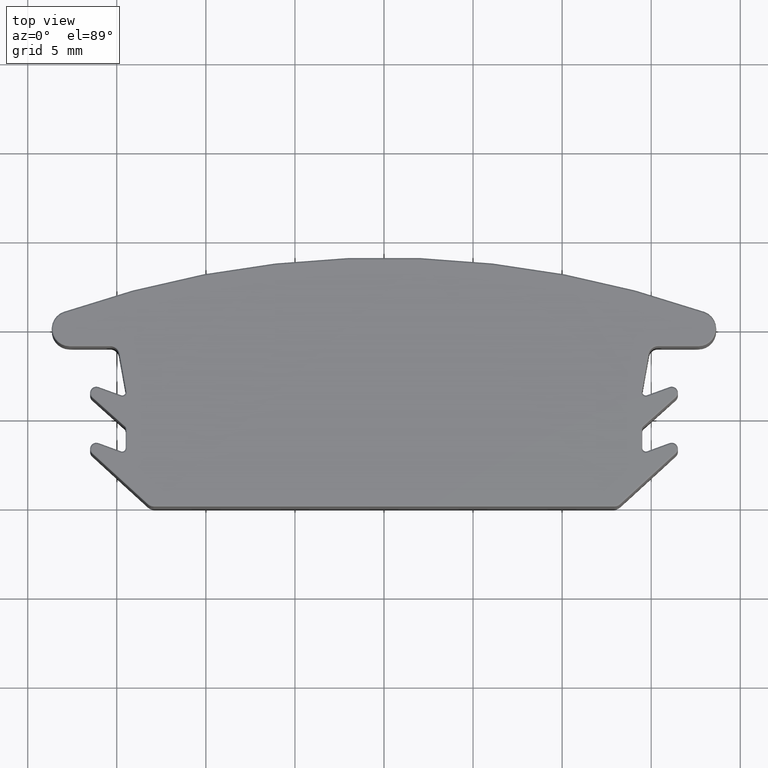
[diagram: clean part render]
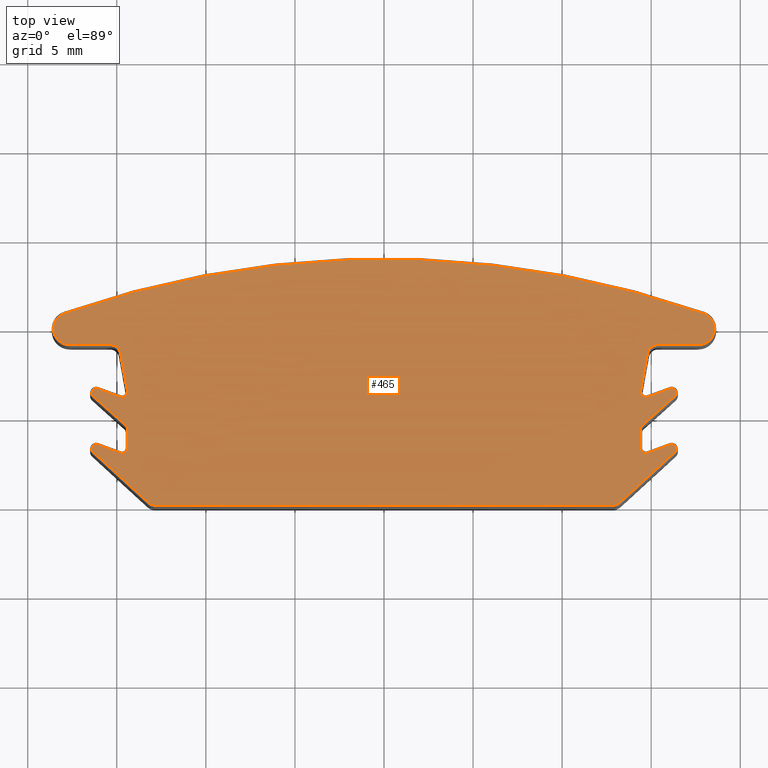
[diagram: same view with one face highlighted and labeled with its STEP entity id]
A machine part, top view. The second image highlights one B-rep face of the part: STEP entity #465.
In plain terms, the highlighted planar face has unit normal (0, 0, 1).
Its self-contained STEP definition (entity closure, byte-faithful):
#4 = VERTEX_POINT ( 'NONE', #1620 ) ;
#9 = DIRECTION ( 'NONE',  ( -0.0000000000000000000, -0.0000000000000000000, -1.000000000000000000 ) ) ;
#10 = AXIS2_PLACEMENT_3D ( 'NONE', #1597, #3017, #2308 ) ;
#14 = AXIS2_PLACEMENT_3D ( 'NONE', #2003, #1460, #765 ) ;
#25 = ORIENTED_EDGE ( 'NONE', *, *, #2714, .T. ) ;
#29 = EDGE_CURVE ( 'NONE', #3128, #1011, #2150, .T. ) ;
#33 = DIRECTION ( 'NONE',  ( 0.0000000000000000000, 0.0000000000000000000, 1.000000000000000000 ) ) ;
#49 = EDGE_CURVE ( 'NONE', #2517, #544, #2270, .T. ) ;
#55 = VECTOR ( 'NONE', #1132, 1000.000000000000100 ) ;
#63 = CARTESIAN_POINT ( 'NONE',  ( -14.78003177189943800, 8.606178591350721200, 5.000000000000000000 ) ) ;
#67 = AXIS2_PLACEMENT_3D ( 'NONE', #2975, #9, #267 ) ;
#92 = CARTESIAN_POINT ( 'NONE',  ( 16.15000000000000200, 6.391038712572399300, 5.000000000000000000 ) ) ;
#110 = DIRECTION ( 'NONE',  ( 1.000000000000000000, 0.0000000000000000000, 0.0000000000000000000 ) ) ;
#114 = CIRCLE ( 'NONE', #509, 0.2500000000000002200 ) ;
#119 = DIRECTION ( 'NONE',  ( -0.0000000000000000000, -0.0000000000000000000, -1.000000000000000000 ) ) ;
#125 = VERTEX_POINT ( 'NONE', #725 ) ;
#132 = CARTESIAN_POINT ( 'NONE',  ( 14.39999999999993100, -40.42041666666671100, 5.000000000000000000 ) ) ;
#135 = CARTESIAN_POINT ( 'NONE',  ( -17.94735821978175800, 10.84945752638269500, 5.000000000000000000 ) ) ;
#150 = DIRECTION ( 'NONE',  ( 1.000000000000000000, 0.0000000000000000000, 0.0000000000000000000 ) ) ;
#154 = EDGE_CURVE ( 'NONE', #2192, #957, #1378, .T. ) ;
#162 = DIRECTION ( 'NONE',  ( 1.000000000000000000, 0.0000000000000000000, 0.0000000000000000000 ) ) ;
#184 = CARTESIAN_POINT ( 'NONE',  ( -17.64999999999999900, 9.999999999999998200, 5.000000000000000000 ) ) ;
#198 = VERTEX_POINT ( 'NONE', #1989 ) ;
#199 = ORIENTED_EDGE ( 'NONE', *, *, #154, .T. ) ;
#207 = CARTESIAN_POINT ( 'NONE',  ( -12.92418032266193600, 0.09999999999999889500, 5.000000000000000000 ) ) ;
#231 = CARTESIAN_POINT ( 'NONE',  ( 12.92418032266193600, 0.1000000000000028200, 5.000000000000000000 ) ) ;
#248 = EDGE_CURVE ( 'NONE', #1172, #2517, #2890, .T. ) ;
#262 = ORIENTED_EDGE ( 'NONE', *, *, #2360, .T. ) ;
#267 = DIRECTION ( 'NONE',  ( 1.000000000000000000, 0.0000000000000000000, 0.0000000000000000000 ) ) ;
#278 = VECTOR ( 'NONE', #1469, 1000.000000000000000 ) ;
#280 = VERTEX_POINT ( 'NONE', #2988 ) ;
#288 = DIRECTION ( 'NONE',  ( 1.000000000000000000, 1.445602896647331200E-015, 0.0000000000000000000 ) ) ;
#289 = CIRCLE ( 'NONE', #784, 0.4000000000000010200 ) ;
#303 = VERTEX_POINT ( 'NONE', #2799 ) ;
#309 = VERTEX_POINT ( 'NONE', #2548 ) ;
#317 = CARTESIAN_POINT ( 'NONE',  ( 13.22640628220673700, -4.015959036050905000, 5.000000000000000000 ) ) ;
#339 = VERTEX_POINT ( 'NONE', #1082 ) ;
#358 = LINE ( 'NONE', #1895, #2198 ) ;
#381 = VERTEX_POINT ( 'NONE', #135 ) ;
#382 = DIRECTION ( 'NONE',  ( -0.9389742350207133100, 0.3439874793757271600, 0.0000000000000000000 ) ) ;
#418 = ORIENTED_EDGE ( 'NONE', *, *, #3093, .T. ) ;
#419 = EDGE_CURVE ( 'NONE', #381, #2366, #1339, .T. ) ;
#441 = CARTESIAN_POINT ( 'NONE',  ( -14.40000000000000200, 3.299999999999999800, 5.000000000000000000 ) ) ;
#465 = ADVANCED_FACE ( 'NONE', ( #613 ), #1645, .T. ) ;
#473 = EDGE_LOOP ( 'NONE', ( #604, #1024, #3037, #1604, #2114, #1397, #2130, #1614, #1981, #1228, #1982, #1774, #199, #418, #2029, #753, #1768, #1051, #2207, #262, #3149, #1468, #580, #555, #2918, #574, #1504, #1958, #986, #1816, #506, #1302, #2536, #2507, #25, #1045 ) ) ;
#505 = LINE ( 'NONE', #2692, #1667 ) ;
#506 = ORIENTED_EDGE ( 'NONE', *, *, #1035, .T. ) ;
#508 = AXIS2_PLACEMENT_3D ( 'NONE', #2738, #2036, #579 ) ;
#509 = AXIS2_PLACEMENT_3D ( 'NONE', #1437, #1697, #1425 ) ;
#540 = CARTESIAN_POINT ( 'NONE',  ( 16.31867223736158600, 3.060927533538993800, 5.000000000000000000 ) ) ;
#544 = VERTEX_POINT ( 'NONE', #2202 ) ;
#548 = CARTESIAN_POINT ( 'NONE',  ( -14.69684345351877600, 6.448255560609276800, 5.000000000000000000 ) ) ;
#555 = ORIENTED_EDGE ( 'NONE', *, *, #2565, .T. ) ;
#567 = VERTEX_POINT ( 'NONE', #231 ) ;
#574 = ORIENTED_EDGE ( 'NONE', *, *, #2683, .T. ) ;
#579 = DIRECTION ( 'NONE',  ( 1.000000000000000000, 2.891205793294679000E-015, 0.0000000000000000000 ) ) ;
#580 = ORIENTED_EDGE ( 'NONE', *, *, #3043, .T. ) ;
#604 = ORIENTED_EDGE ( 'NONE', *, *, #49, .T. ) ;
#608 = VERTEX_POINT ( 'NONE', #2647 ) ;
#611 = CARTESIAN_POINT ( 'NONE',  ( -12.92418032266193600, 0.5000000000000004400, 5.000000000000000000 ) ) ;
#613 = FACE_OUTER_BOUND ( 'NONE', #473, .T. ) ;
#622 = CARTESIAN_POINT ( 'NONE',  ( 14.70000000000000300, 3.299999999999999800, 5.000000000000000000 ) ) ;
#658 = CARTESIAN_POINT ( 'NONE',  ( 17.94735821978175800, 10.84945752638269500, 5.000000000000000000 ) ) ;
#688 = EDGE_CURVE ( 'NONE', #2859, #2107, #2572, .T. ) ;
#725 = CARTESIAN_POINT ( 'NONE',  ( 14.40000000000000400, 4.358516086231699800, 5.000000000000000000 ) ) ;
#738 = AXIS2_PLACEMENT_3D ( 'NONE', #2746, #1008, #2728 ) ;
#739 = DIRECTION ( 'NONE',  ( 0.7458248930639943500, -0.6661420485797914200, 0.0000000000000000000 ) ) ;
#753 = ORIENTED_EDGE ( 'NONE', *, *, #1638, .T. ) ;
#765 = DIRECTION ( 'NONE',  ( 1.000000000000000000, -2.891205793294645900E-015, 0.0000000000000000000 ) ) ;
#768 = CARTESIAN_POINT ( 'NONE',  ( 1.231143763746116700E-016, 0.1000000000000028600, 5.000000000000000000 ) ) ;
#772 = CIRCLE ( 'NONE', #1832, 54.32041666666667400 ) ;
#784 = AXIS2_PLACEMENT_3D ( 'NONE', #1595, #1866, #162 ) ;
#796 = DIRECTION ( 'NONE',  ( 0.7381021755116327100, 0.6746889494463317300, -0.0000000000000000000 ) ) ;
#803 = EDGE_CURVE ( 'NONE', #339, #864, #1695, .T. ) ;
#840 = EDGE_CURVE ( 'NONE', #3105, #2859, #2740, .T. ) ;
#850 = DIRECTION ( 'NONE',  ( 0.0000000000000000000, 0.0000000000000000000, 1.000000000000000000 ) ) ;
#864 = VERTEX_POINT ( 'NONE', #3058 ) ;
#874 = DIRECTION ( 'NONE',  ( 0.0000000000000000000, 0.0000000000000000000, 1.000000000000000000 ) ) ;
#950 = CARTESIAN_POINT ( 'NONE',  ( -15.37056213245575800, 8.499999999999998200, 5.000000000000000000 ) ) ;
#957 = VERTEX_POINT ( 'NONE', #2403 ) ;
#977 = VERTEX_POINT ( 'NONE', #1886 ) ;
#979 = LINE ( 'NONE', #768, #2846 ) ;
#986 = ORIENTED_EDGE ( 'NONE', *, *, #3000, .T. ) ;
#1008 = DIRECTION ( 'NONE',  ( -0.0000000000000000000, -0.0000000000000000000, -1.000000000000000000 ) ) ;
#1011 = VERTEX_POINT ( 'NONE', #1923 ) ;
#1016 = CARTESIAN_POINT ( 'NONE',  ( -16.15000000000000200, 6.391038712572399300, 5.000000000000000000 ) ) ;
#1024 = ORIENTED_EDGE ( 'NONE', *, *, #1340, .T. ) ;
#1035 = EDGE_CURVE ( 'NONE', #3110, #309, #114, .T. ) ;
#1039 = EDGE_CURVE ( 'NONE', #2182, #4, #505, .T. ) ;
#1045 = ORIENTED_EDGE ( 'NONE', *, *, #248, .T. ) ;
#1051 = ORIENTED_EDGE ( 'NONE', *, *, #2511, .T. ) ;
#1078 = CARTESIAN_POINT ( 'NONE',  ( 15.37056213245575800, 9.099999999999999600, 5.000000000000000000 ) ) ;
#1082 = CARTESIAN_POINT ( 'NONE',  ( 16.06463024189465100, 6.626011060734973600, 5.000000000000000000 ) ) ;
#1086 = DIRECTION ( 'NONE',  ( 1.000000000000000000, 0.0000000000000000000, 0.0000000000000000000 ) ) ;
#1094 = CIRCLE ( 'NONE', #1999, 0.2500000000000002200 ) ;
#1114 = AXIS2_PLACEMENT_3D ( 'NONE', #1985, #33, #2933 ) ;
#1132 = DIRECTION ( 'NONE',  ( 0.7458248930639943500, 0.6661420485797914200, -0.0000000000000000000 ) ) ;
#1154 = CARTESIAN_POINT ( 'NONE',  ( -12.27888379074712500, -6.903046978534430200, 5.000000000000000000 ) ) ;
#1172 = VERTEX_POINT ( 'NONE', #1976 ) ;
#1184 = AXIS2_PLACEMENT_3D ( 'NONE', #548, #2732, #2713 ) ;
#1193 = EDGE_CURVE ( 'NONE', #2107, #303, #1466, .T. ) ;
#1194 = EDGE_CURVE ( 'NONE', #1929, #567, #979, .T. ) ;
#1199 = EDGE_CURVE ( 'NONE', #2780, #2192, #2995, .T. ) ;
#1209 = DIRECTION ( 'NONE',  ( 0.0000000000000000000, 0.0000000000000000000, 1.000000000000000000 ) ) ;
#1228 = ORIENTED_EDGE ( 'NONE', *, *, #1193, .T. ) ;
#1241 = EDGE_CURVE ( 'NONE', #2366, #280, #1701, .T. ) ;
#1256 = CARTESIAN_POINT ( 'NONE',  ( -14.22490359105840200, -24.85853100717935500, 5.000000000000000000 ) ) ;
#1296 = EDGE_CURVE ( 'NONE', #309, #339, #1094, .T. ) ;
#1302 = ORIENTED_EDGE ( 'NONE', *, *, #1296, .T. ) ;
#1304 = CARTESIAN_POINT ( 'NONE',  ( 14.50015738542606400, 4.582263554150897800, 5.000000000000000000 ) ) ;
#1306 = EDGE_CURVE ( 'NONE', #2233, #2092, #2808, .T. ) ;
#1309 = CARTESIAN_POINT ( 'NONE',  ( -14.70000000000000300, 3.299999999999999800, 5.000000000000000000 ) ) ;
#1318 = VECTOR ( 'NONE', #382, 1000.000000000000000 ) ;
#1339 = CIRCLE ( 'NONE', #3082, 0.8999999999999980200 ) ;
#1340 = EDGE_CURVE ( 'NONE', #544, #3103, #2885, .T. ) ;
#1345 = AXIS2_PLACEMENT_3D ( 'NONE', #1016, #1514, #2744 ) ;
#1350 = DIRECTION ( 'NONE',  ( 1.000000000000000000, 0.0000000000000000000, 0.0000000000000000000 ) ) ;
#1353 = CIRCLE ( 'NONE', #3033, 0.2500000000000002200 ) ;
#1360 = EDGE_CURVE ( 'NONE', #2297, #3110, #2500, .T. ) ;
#1363 = CARTESIAN_POINT ( 'NONE',  ( -14.39684345351877100, 6.448255560609276800, 4.999999999999999100 ) ) ;
#1378 = LINE ( 'NONE', #1447, #2934 ) ;
#1397 = ORIENTED_EDGE ( 'NONE', *, *, #1241, .T. ) ;
#1398 = EDGE_CURVE ( 'NONE', #567, #198, #289, .T. ) ;
#1425 = DIRECTION ( 'NONE',  ( 1.000000000000000000, 0.0000000000000000000, 0.0000000000000000000 ) ) ;
#1435 = VECTOR ( 'NONE', #2331, 1000.000000000000100 ) ;
#1437 = CARTESIAN_POINT ( 'NONE',  ( 16.15000000000000200, 6.391038712572399300, 5.000000000000000000 ) ) ;
#1447 = CARTESIAN_POINT ( 'NONE',  ( 15.92409544032642700, -22.59150644512600100, 5.000000000000000000 ) ) ;
#1453 = EDGE_CURVE ( 'NONE', #2884, #977, #2394, .T. ) ;
#1460 = DIRECTION ( 'NONE',  ( -0.0000000000000000000, -0.0000000000000000000, -1.000000000000000000 ) ) ;
#1466 = CIRCLE ( 'NONE', #1184, 0.3000000000000033800 ) ;
#1468 = ORIENTED_EDGE ( 'NONE', *, *, #1398, .T. ) ;
#1469 = DIRECTION ( 'NONE',  ( 1.000000000000000000, -1.522062523112960000E-015, -0.0000000000000000000 ) ) ;
#1494 = DIRECTION ( 'NONE',  ( -0.0000000000000000000, -0.0000000000000000000, -1.000000000000000000 ) ) ;
#1504 = ORIENTED_EDGE ( 'NONE', *, *, #29, .T. ) ;
#1514 = DIRECTION ( 'NONE',  ( 0.0000000000000000000, 0.0000000000000000000, 1.000000000000000000 ) ) ;
#1516 = VECTOR ( 'NONE', #2761, 1000.000000000000100 ) ;
#1572 = DIRECTION ( 'NONE',  ( 0.0000000000000000000, 0.0000000000000000000, 1.000000000000000000 ) ) ;
#1595 = CARTESIAN_POINT ( 'NONE',  ( 12.92418032266193600, 0.5000000000000004400, 5.000000000000000000 ) ) ;
#1597 = CARTESIAN_POINT ( 'NONE',  ( -16.15000000000000200, 3.245453077416903500, 5.000000000000000000 ) ) ;
#1604 = ORIENTED_EDGE ( 'NONE', *, *, #2677, .T. ) ;
#1614 = ORIENTED_EDGE ( 'NONE', *, *, #840, .T. ) ;
#1620 = CARTESIAN_POINT ( 'NONE',  ( -13.19405590244046800, 0.2047591297953473600, 5.000000000000000000 ) ) ;
#1638 = EDGE_CURVE ( 'NONE', #2247, #2884, #2730, .T. ) ;
#1645 = PLANE ( 'NONE',  #2640 ) ;
#1657 = CARTESIAN_POINT ( 'NONE',  ( -16.06463024189465100, 6.626011060734970900, 5.000000000000000000 ) ) ;
#1667 = VECTOR ( 'NONE', #2665, 1000.000000000000100 ) ;
#1680 = AXIS2_PLACEMENT_3D ( 'NONE', #622, #1494, #288 ) ;
#1695 = LINE ( 'NONE', #2508, #1516 ) ;
#1697 = DIRECTION ( 'NONE',  ( 0.0000000000000000000, 0.0000000000000000000, 1.000000000000000000 ) ) ;
#1699 = VECTOR ( 'NONE', #2343, 1000.000000000000000 ) ;
#1701 = LINE ( 'NONE', #2273, #2206 ) ;
#1717 = CARTESIAN_POINT ( 'NONE',  ( -14.40000000000000200, 4.358516086231699800, 5.000000000000000000 ) ) ;
#1737 = EDGE_CURVE ( 'NONE', #280, #3105, #1770, .T. ) ;
#1754 = CARTESIAN_POINT ( 'NONE',  ( 16.31653551214494900, 6.204582489306398300, 5.000000000000000000 ) ) ;
#1768 = ORIENTED_EDGE ( 'NONE', *, *, #1453, .T. ) ;
#1770 = CIRCLE ( 'NONE', #2831, 0.6000000000000015300 ) ;
#1774 = ORIENTED_EDGE ( 'NONE', *, *, #1199, .T. ) ;
#1804 = DIRECTION ( 'NONE',  ( 1.000000000000000000, -2.891205793294645900E-015, 0.0000000000000000000 ) ) ;
#1809 = DIRECTION ( 'NONE',  ( 0.0000000000000000000, 0.0000000000000000000, 1.000000000000000000 ) ) ;
#1816 = ORIENTED_EDGE ( 'NONE', *, *, #1360, .T. ) ;
#1818 = CARTESIAN_POINT ( 'NONE',  ( 14.69684345351877600, 6.448255560609276800, 5.000000000000000000 ) ) ;
#1832 = AXIS2_PLACEMENT_3D ( 'NONE', #2645, #1871, #3113 ) ;
#1844 = EDGE_CURVE ( 'NONE', #1011, #125, #2843, .T. ) ;
#1851 = CIRCLE ( 'NONE', #10, 0.2500000000000002200 ) ;
#1854 = AXIS2_PLACEMENT_3D ( 'NONE', #1818, #119, #1804 ) ;
#1866 = DIRECTION ( 'NONE',  ( 0.0000000000000000000, 0.0000000000000000000, 1.000000000000000000 ) ) ;
#1871 = DIRECTION ( 'NONE',  ( 0.0000000000000000000, 0.0000000000000000000, 1.000000000000000000 ) ) ;
#1886 = CARTESIAN_POINT ( 'NONE',  ( -16.06400313015607000, 3.480196636172083300, 5.000000000000000000 ) ) ;
#1889 = VECTOR ( 'NONE', #796, 1000.000000000000100 ) ;
#1895 = CARTESIAN_POINT ( 'NONE',  ( 5.778147111199869500, -41.45933957709328900, 5.000000000000000000 ) ) ;
#1923 = CARTESIAN_POINT ( 'NONE',  ( 14.40000000000000200, 3.299999999999999800, 5.000000000000000000 ) ) ;
#1929 = VERTEX_POINT ( 'NONE', #207 ) ;
#1932 = LINE ( 'NONE', #1154, #2650 ) ;
#1945 = CARTESIAN_POINT ( 'NONE',  ( -14.39999999999993100, -40.42041666666671100, 5.000000000000000000 ) ) ;
#1958 = ORIENTED_EDGE ( 'NONE', *, *, #1844, .T. ) ;
#1968 = DIRECTION ( 'NONE',  ( 1.638825803916117600E-015, -1.000000000000000000, 0.0000000000000000000 ) ) ;
#1976 = CARTESIAN_POINT ( 'NONE',  ( 14.78003177189943800, 8.606178591350721200, 5.000000000000000000 ) ) ;
#1981 = ORIENTED_EDGE ( 'NONE', *, *, #688, .T. ) ;
#1982 = ORIENTED_EDGE ( 'NONE', *, *, #2444, .T. ) ;
#1985 = CARTESIAN_POINT ( 'NONE',  ( 17.64999999999999900, 9.999999999999998200, 5.000000000000000000 ) ) ;
#1989 = CARTESIAN_POINT ( 'NONE',  ( 13.19405590244047000, 0.2047591297953455800, 5.000000000000000000 ) ) ;
#1999 = AXIS2_PLACEMENT_3D ( 'NONE', #92, #1809, #2522 ) ;
#2003 = CARTESIAN_POINT ( 'NONE',  ( -14.69684345351877600, 6.448255560609276800, 5.000000000000000000 ) ) ;
#2015 = EDGE_CURVE ( 'NONE', #864, #608, #2915, .T. ) ;
#2016 = DIRECTION ( 'NONE',  ( -0.9398893926502898100, 0.3414790324214202500, 0.0000000000000000000 ) ) ;
#2029 = ORIENTED_EDGE ( 'NONE', *, *, #2837, .T. ) ;
#2033 = CARTESIAN_POINT ( 'NONE',  ( 16.15000000000000200, 3.245453077416903500, 5.000000000000000000 ) ) ;
#2036 = DIRECTION ( 'NONE',  ( -0.0000000000000000000, -0.0000000000000000000, -1.000000000000000000 ) ) ;
#2046 = DIRECTION ( 'NONE',  ( -0.0000000000000000000, -0.0000000000000000000, -1.000000000000000000 ) ) ;
#2083 = CARTESIAN_POINT ( 'NONE',  ( -15.92409544032642700, -22.59150644512600100, 5.000000000000000000 ) ) ;
#2092 = VERTEX_POINT ( 'NONE', #3030 ) ;
#2107 = VERTEX_POINT ( 'NONE', #1363 ) ;
#2113 = DIRECTION ( 'NONE',  ( -0.9389742350207133100, -0.3439874793757271600, 0.0000000000000000000 ) ) ;
#2114 = ORIENTED_EDGE ( 'NONE', *, *, #419, .T. ) ;
#2130 = ORIENTED_EDGE ( 'NONE', *, *, #1737, .T. ) ;
#2150 = CIRCLE ( 'NONE', #1680, 0.3000000000000016500 ) ;
#2157 = CARTESIAN_POINT ( 'NONE',  ( 16.40000000000000200, 3.245453077416903500, 5.000000000000000000 ) ) ;
#2182 = VERTEX_POINT ( 'NONE', #2621 ) ;
#2192 = VERTEX_POINT ( 'NONE', #2862 ) ;
#2198 = VECTOR ( 'NONE', #2363, 1000.000000000000100 ) ;
#2202 = CARTESIAN_POINT ( 'NONE',  ( 17.64999999999999900, 9.099999999999997900, 5.000000000000000000 ) ) ;
#2206 = VECTOR ( 'NONE', #2514, 1000.000000000000000 ) ;
#2207 = ORIENTED_EDGE ( 'NONE', *, *, #1039, .T. ) ;
#2233 = VERTEX_POINT ( 'NONE', #2157 ) ;
#2234 = LINE ( 'NONE', #1256, #1889 ) ;
#2236 = DIRECTION ( 'NONE',  ( 1.000000000000000000, -2.891205793294671100E-015, 0.0000000000000000000 ) ) ;
#2247 = VERTEX_POINT ( 'NONE', #441 ) ;
#2257 = CARTESIAN_POINT ( 'NONE',  ( 14.80319624381272100, 3.018307729493785500, 5.000000000000000000 ) ) ;
#2270 = LINE ( 'NONE', #2712, #278 ) ;
#2271 = AXIS2_PLACEMENT_3D ( 'NONE', #611, #850, #1350 ) ;
#2273 = CARTESIAN_POINT ( 'NONE',  ( -7.537317033727180900E-014, 9.100000000000024500, 5.000000000000000000 ) ) ;
#2278 = LINE ( 'NONE', #317, #2424 ) ;
#2297 = VERTEX_POINT ( 'NONE', #1304 ) ;
#2304 = DIRECTION ( 'NONE',  ( 0.0000000000000000000, 0.0000000000000000000, 1.000000000000000000 ) ) ;
#2308 = DIRECTION ( 'NONE',  ( 1.000000000000000000, 0.0000000000000000000, 0.0000000000000000000 ) ) ;
#2312 = CIRCLE ( 'NONE', #67, 0.2999999999999999300 ) ;
#2331 = DIRECTION ( 'NONE',  ( 0.1769643189178684300, -0.9842172675938656300, 0.0000000000000000000 ) ) ;
#2340 = CARTESIAN_POINT ( 'NONE',  ( -5.778147111199869500, -41.45933957709328900, 5.000000000000000000 ) ) ;
#2343 = DIRECTION ( 'NONE',  ( 1.638825803916117600E-015, 1.000000000000000000, -0.0000000000000000000 ) ) ;
#2360 = EDGE_CURVE ( 'NONE', #4, #1929, #3022, .T. ) ;
#2363 = DIRECTION ( 'NONE',  ( 0.1769643189178684300, 0.9842172675938656300, -0.0000000000000000000 ) ) ;
#2366 = VERTEX_POINT ( 'NONE', #2916 ) ;
#2382 = VERTEX_POINT ( 'NONE', #1717 ) ;
#2385 = CIRCLE ( 'NONE', #1114, 0.8999999999999980200 ) ;
#2394 = LINE ( 'NONE', #3049, #1318 ) ;
#2403 = CARTESIAN_POINT ( 'NONE',  ( -14.50015738542606400, 4.582263554150897800, 5.000000000000000000 ) ) ;
#2424 = VECTOR ( 'NONE', #2016, 1000.000000000000100 ) ;
#2443 = DIRECTION ( 'NONE',  ( -0.0000000000000000000, -0.0000000000000000000, -1.000000000000000000 ) ) ;
#2444 = EDGE_CURVE ( 'NONE', #303, #2780, #2278, .T. ) ;
#2451 = CARTESIAN_POINT ( 'NONE',  ( -14.40157827324061800, 6.501344856284637400, 5.000000000000000000 ) ) ;
#2485 = AXIS2_PLACEMENT_3D ( 'NONE', #2033, #2304, #2772 ) ;
#2486 = VERTEX_POINT ( 'NONE', #658 ) ;
#2487 = DIRECTION ( 'NONE',  ( 1.000000000000000000, -3.038329476900202600E-018, 0.0000000000000000000 ) ) ;
#2500 = LINE ( 'NONE', #2083, #55 ) ;
#2507 = ORIENTED_EDGE ( 'NONE', *, *, #2015, .T. ) ;
#2508 = CARTESIAN_POINT ( 'NONE',  ( -13.22640628220673700, -4.015959036050905000, 5.000000000000000000 ) ) ;
#2509 = CARTESIAN_POINT ( 'NONE',  ( 18.54999999999999700, 9.999999999999998200, 5.000000000000000000 ) ) ;
#2511 = EDGE_CURVE ( 'NONE', #977, #2182, #1851, .T. ) ;
#2514 = DIRECTION ( 'NONE',  ( 1.000000000000000000, 1.522062523112960000E-015, -0.0000000000000000000 ) ) ;
#2517 = VERTEX_POINT ( 'NONE', #1078 ) ;
#2522 = DIRECTION ( 'NONE',  ( 1.000000000000000000, 0.0000000000000000000, 0.0000000000000000000 ) ) ;
#2536 = ORIENTED_EDGE ( 'NONE', *, *, #803, .T. ) ;
#2548 = CARTESIAN_POINT ( 'NONE',  ( 16.40000000000000200, 6.391038712572399300, 5.000000000000000000 ) ) ;
#2565 = EDGE_CURVE ( 'NONE', #2920, #2233, #1353, .T. ) ;
#2572 = CIRCLE ( 'NONE', #14, 0.3000000000000033800 ) ;
#2578 = CARTESIAN_POINT ( 'NONE',  ( 16.15000000000000200, 3.245453077416903500, 5.000000000000000000 ) ) ;
#2591 = DIRECTION ( 'NONE',  ( 0.0000000000000000000, 0.0000000000000000000, 1.000000000000000000 ) ) ;
#2621 = CARTESIAN_POINT ( 'NONE',  ( -16.31867223736158600, 3.060927533538994700, 5.000000000000000000 ) ) ;
#2627 = CARTESIAN_POINT ( 'NONE',  ( 0.0000000000000000000, -40.42041666666668900, 5.000000000000000000 ) ) ;
#2640 = AXIS2_PLACEMENT_3D ( 'NONE', #2627, #1209, #3124 ) ;
#2645 = CARTESIAN_POINT ( 'NONE',  ( 0.0000000000000000000, -40.42041666666668900, 5.000000000000000000 ) ) ;
#2647 = CARTESIAN_POINT ( 'NONE',  ( 14.40157827324061300, 6.501344856284637400, 5.000000000000000000 ) ) ;
#2649 = CIRCLE ( 'NONE', #508, 0.2999999999999999300 ) ;
#2650 = VECTOR ( 'NONE', #2113, 1000.000000000000000 ) ;
#2665 = DIRECTION ( 'NONE',  ( 0.7381021755116327100, -0.6746889494463317300, 0.0000000000000000000 ) ) ;
#2673 = AXIS2_PLACEMENT_3D ( 'NONE', #1309, #2046, #3008 ) ;
#2677 = EDGE_CURVE ( 'NONE', #2486, #381, #772, .T. ) ;
#2683 = EDGE_CURVE ( 'NONE', #2092, #3128, #1932, .T. ) ;
#2692 = CARTESIAN_POINT ( 'NONE',  ( 14.22490359105840200, -24.85853100717935500, 5.000000000000000000 ) ) ;
#2712 = CARTESIAN_POINT ( 'NONE',  ( 7.537317033727180900E-014, 9.100000000000024500, 5.000000000000000000 ) ) ;
#2713 = DIRECTION ( 'NONE',  ( 1.000000000000000000, 0.0000000000000000000, 0.0000000000000000000 ) ) ;
#2714 = EDGE_CURVE ( 'NONE', #608, #1172, #358, .T. ) ;
#2725 = VECTOR ( 'NONE', #1968, 1000.000000000000000 ) ;
#2728 = DIRECTION ( 'NONE',  ( 1.000000000000000000, -2.891205793294671100E-015, 0.0000000000000000000 ) ) ;
#2730 = CIRCLE ( 'NONE', #2673, 0.3000000000000016500 ) ;
#2732 = DIRECTION ( 'NONE',  ( -0.0000000000000000000, -0.0000000000000000000, -1.000000000000000000 ) ) ;
#2738 = CARTESIAN_POINT ( 'NONE',  ( -14.70000000000000100, 4.358516086231699800, 5.000000000000000000 ) ) ;
#2740 = LINE ( 'NONE', #2340, #1435 ) ;
#2744 = DIRECTION ( 'NONE',  ( 1.000000000000000000, 0.0000000000000000000, 0.0000000000000000000 ) ) ;
#2746 = CARTESIAN_POINT ( 'NONE',  ( 15.37056213245575800, 8.499999999999998200, 5.000000000000000000 ) ) ;
#2761 = DIRECTION ( 'NONE',  ( -0.9398893926502898100, -0.3414790324214202500, 0.0000000000000000000 ) ) ;
#2772 = DIRECTION ( 'NONE',  ( 1.000000000000000000, 0.0000000000000000000, 0.0000000000000000000 ) ) ;
#2780 = VERTEX_POINT ( 'NONE', #1657 ) ;
#2799 = CARTESIAN_POINT ( 'NONE',  ( -14.79928716324520400, 6.166288742814186800, 5.000000000000000000 ) ) ;
#2808 = CIRCLE ( 'NONE', #2485, 0.2500000000000002200 ) ;
#2831 = AXIS2_PLACEMENT_3D ( 'NONE', #950, #2443, #2236 ) ;
#2837 = EDGE_CURVE ( 'NONE', #2382, #2247, #2908, .T. ) ;
#2843 = LINE ( 'NONE', #132, #1699 ) ;
#2846 = VECTOR ( 'NONE', #2487, 1000.000000000000000 ) ;
#2859 = VERTEX_POINT ( 'NONE', #2451 ) ;
#2862 = CARTESIAN_POINT ( 'NONE',  ( -16.31653551214494900, 6.204582489306400100, 5.000000000000000000 ) ) ;
#2884 = VERTEX_POINT ( 'NONE', #2902 ) ;
#2885 = CIRCLE ( 'NONE', #2972, 0.8999999999999980200 ) ;
#2890 = CIRCLE ( 'NONE', #738, 0.6000000000000015300 ) ;
#2895 = EDGE_CURVE ( 'NONE', #3103, #2486, #2385, .T. ) ;
#2902 = CARTESIAN_POINT ( 'NONE',  ( -14.80319624381272100, 3.018307729493785000, 5.000000000000000000 ) ) ;
#2908 = LINE ( 'NONE', #1945, #2725 ) ;
#2915 = CIRCLE ( 'NONE', #1854, 0.3000000000000033800 ) ;
#2916 = CARTESIAN_POINT ( 'NONE',  ( -17.64999999999999900, 9.099999999999997900, 5.000000000000000000 ) ) ;
#2918 = ORIENTED_EDGE ( 'NONE', *, *, #1306, .T. ) ;
#2920 = VERTEX_POINT ( 'NONE', #540 ) ;
#2933 = DIRECTION ( 'NONE',  ( 1.000000000000000000, 0.0000000000000000000, 0.0000000000000000000 ) ) ;
#2934 = VECTOR ( 'NONE', #739, 1000.000000000000100 ) ;
#2972 = AXIS2_PLACEMENT_3D ( 'NONE', #2993, #1572, #1086 ) ;
#2975 = CARTESIAN_POINT ( 'NONE',  ( 14.70000000000000100, 4.358516086231699800, 5.000000000000000000 ) ) ;
#2988 = CARTESIAN_POINT ( 'NONE',  ( -15.37056213245575800, 9.100000000000001400, 5.000000000000000000 ) ) ;
#2993 = CARTESIAN_POINT ( 'NONE',  ( 17.64999999999999900, 9.999999999999998200, 5.000000000000000000 ) ) ;
#2995 = CIRCLE ( 'NONE', #1345, 0.2500000000000002200 ) ;
#3000 = EDGE_CURVE ( 'NONE', #125, #2297, #2312, .T. ) ;
#3008 = DIRECTION ( 'NONE',  ( 1.000000000000000000, 0.0000000000000000000, 0.0000000000000000000 ) ) ;
#3017 = DIRECTION ( 'NONE',  ( 0.0000000000000000000, 0.0000000000000000000, 1.000000000000000000 ) ) ;
#3022 = CIRCLE ( 'NONE', #2271, 0.4000000000000010200 ) ;
#3030 = CARTESIAN_POINT ( 'NONE',  ( 16.06400313015607000, 3.480196636172082900, 5.000000000000000000 ) ) ;
#3033 = AXIS2_PLACEMENT_3D ( 'NONE', #2578, #2591, #110 ) ;
#3037 = ORIENTED_EDGE ( 'NONE', *, *, #2895, .T. ) ;
#3043 = EDGE_CURVE ( 'NONE', #198, #2920, #2234, .T. ) ;
#3049 = CARTESIAN_POINT ( 'NONE',  ( 12.27888379074712500, -6.903046978534430200, 5.000000000000000000 ) ) ;
#3058 = CARTESIAN_POINT ( 'NONE',  ( 14.79928716324520500, 6.166288742814181500, 5.000000000000000000 ) ) ;
#3082 = AXIS2_PLACEMENT_3D ( 'NONE', #184, #874, #150 ) ;
#3093 = EDGE_CURVE ( 'NONE', #957, #2382, #2649, .T. ) ;
#3103 = VERTEX_POINT ( 'NONE', #2509 ) ;
#3105 = VERTEX_POINT ( 'NONE', #63 ) ;
#3110 = VERTEX_POINT ( 'NONE', #1754 ) ;
#3113 = DIRECTION ( 'NONE',  ( 1.000000000000000000, 0.0000000000000000000, 0.0000000000000000000 ) ) ;
#3124 = DIRECTION ( 'NONE',  ( 1.000000000000000000, 0.0000000000000000000, -0.0000000000000000000 ) ) ;
#3128 = VERTEX_POINT ( 'NONE', #2257 ) ;
#3149 = ORIENTED_EDGE ( 'NONE', *, *, #1194, .T. ) ;